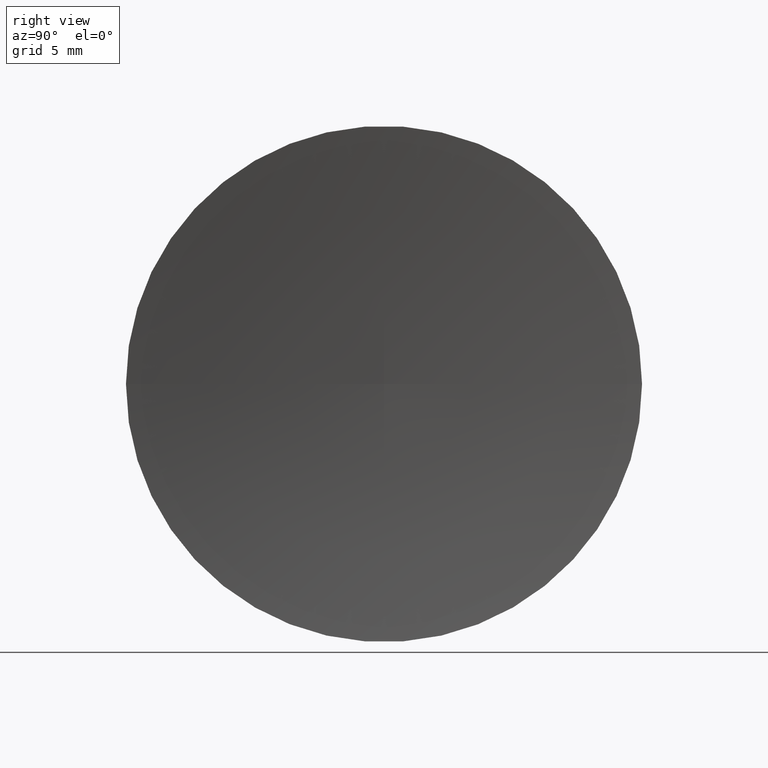
[diagram: clean part render]
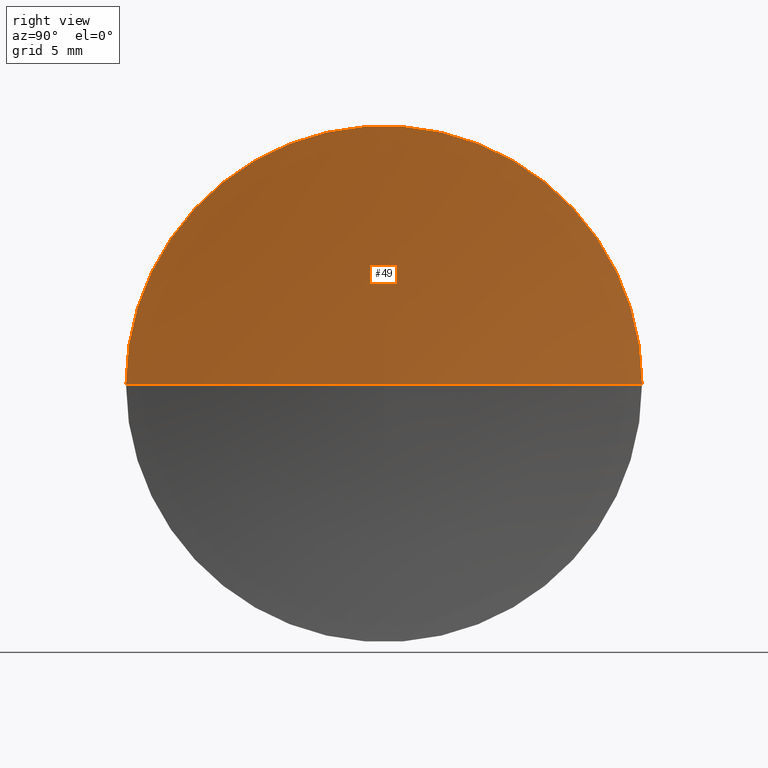
[diagram: same view with one face highlighted and labeled with its STEP entity id]
A machine part, right view. The second image highlights one B-rep face of the part: STEP entity #49.
In plain terms, the highlighted toroidal blend (fillet) surface has major radius 0.0178 mm and minor (blend) radius 82.62 mm.
Its self-contained STEP definition (entity closure, byte-faithful):
#2 = CARTESIAN_POINT ( 'NONE',  ( 141.9781882486672100, 32.56096354764692800, -2.175262423378643000E-018 ) ) ;
#4 = CARTESIAN_POINT ( 'NONE',  ( 60.31197721033621700, 45.07872591329306300, 1.530808498934187800E-015 ) ) ;
#9 = EDGE_LOOP ( 'NONE', ( #56, #96, #108 ) ) ;
#12 = FACE_OUTER_BOUND ( 'NONE', #9, .T. ) ;
#15 = DIRECTION ( 'NONE',  ( 0.0000000000000000000, -0.0000000000000000000, -1.000000000000000000 ) ) ;
#17 = DIRECTION ( 'NONE',  ( 0.0000000000000000000, -1.000000000000000000, -1.224646799147353200E-016 ) ) ;
#36 = DIRECTION ( 'NONE',  ( -7.636108817321419600E-016, -1.000000000000000000, 0.0000000000000000000 ) ) ;
#37 = CARTESIAN_POINT ( 'NONE',  ( 141.9781882486672100, 32.57872591329302700, 0.0000000000000000000 ) ) ;
#49 = ADVANCED_FACE ( 'NONE', ( #12 ), #88, .F. ) ;
#56 = ORIENTED_EDGE ( 'NONE', *, *, #99, .F. ) ;
#60 = VERTEX_POINT ( 'NONE', #140 ) ;
#66 = DIRECTION ( 'NONE',  ( -1.000000000000000000, 7.636108817321419600E-016, -0.0000000000000000000 ) ) ;
#67 = EDGE_CURVE ( 'NONE', #60, #100, #148, .T. ) ;
#69 = DIRECTION ( 'NONE',  ( -1.000000000000000000, 0.0000000000000000000, 0.0000000000000000000 ) ) ;
#84 = CARTESIAN_POINT ( 'NONE',  ( 60.31197721033621700, 32.57872591329309100, 0.0000000000000000000 ) ) ;
#88 = TOROIDAL_SURFACE ( 'NONE', #97, -0.01776236564610420700, 82.62000000000000500 ) ;
#90 = CARTESIAN_POINT ( 'NONE',  ( 141.9781882486672100, 32.59648827893912700, 0.0000000000000000000 ) ) ;
#96 = ORIENTED_EDGE ( 'NONE', *, *, #144, .F. ) ;
#97 = AXIS2_PLACEMENT_3D ( 'NONE', #37, #142, #36 ) ;
#99 = EDGE_CURVE ( 'NONE', #114, #100, #137, .T. ) ;
#100 = VERTEX_POINT ( 'NONE', #120 ) ;
#108 = ORIENTED_EDGE ( 'NONE', *, *, #67, .T. ) ;
#114 = VERTEX_POINT ( 'NONE', #4 ) ;
#119 = AXIS2_PLACEMENT_3D ( 'NONE', #2, #149, #17 ) ;
#120 = CARTESIAN_POINT ( 'NONE',  ( 59.35819015802110200, 32.57872591329309100, 0.0000000000000000000 ) ) ;
#123 = AXIS2_PLACEMENT_3D ( 'NONE', #84, #66, #160 ) ;
#132 = AXIS2_PLACEMENT_3D ( 'NONE', #90, #15, #69 ) ;
#137 = CIRCLE ( 'NONE', #119, 82.62000000000000500 ) ;
#140 = CARTESIAN_POINT ( 'NONE',  ( 60.31197721033620200, 20.07872591329312000, 0.0000000000000000000 ) ) ;
#142 = DIRECTION ( 'NONE',  ( -1.000000000000000000, 7.636108817321419600E-016, -0.0000000000000000000 ) ) ;
#144 = EDGE_CURVE ( 'NONE', #60, #114, #157, .T. ) ;
#148 = CIRCLE ( 'NONE', #132, 82.62000000000000500 ) ;
#149 = DIRECTION ( 'NONE',  ( -9.351536221073556900E-032, -1.224646799147353200E-016, 1.000000000000000000 ) ) ;
#157 = CIRCLE ( 'NONE', #123, 12.50000000000000000 ) ;
#160 = DIRECTION ( 'NONE',  ( -5.551115123125782700E-016, -1.000000000000000000, 0.0000000000000000000 ) ) ;